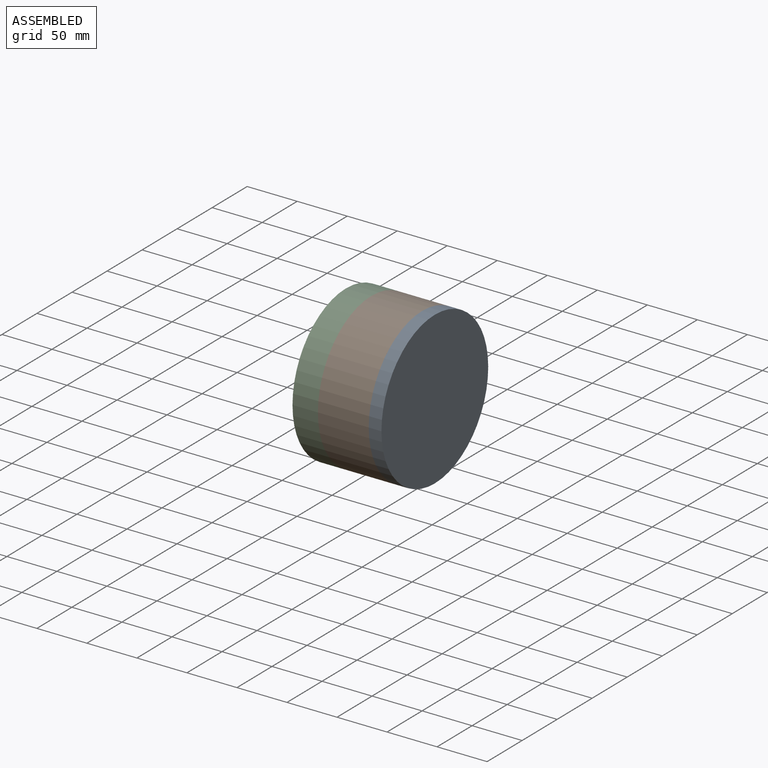
[diagram: assembled view]
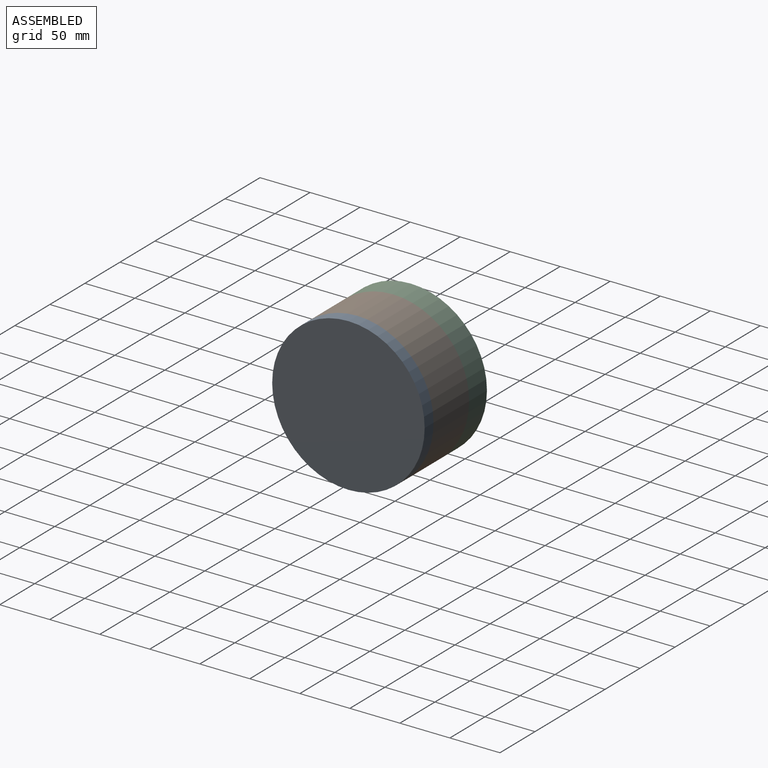
[diagram: assembled view, second angle]
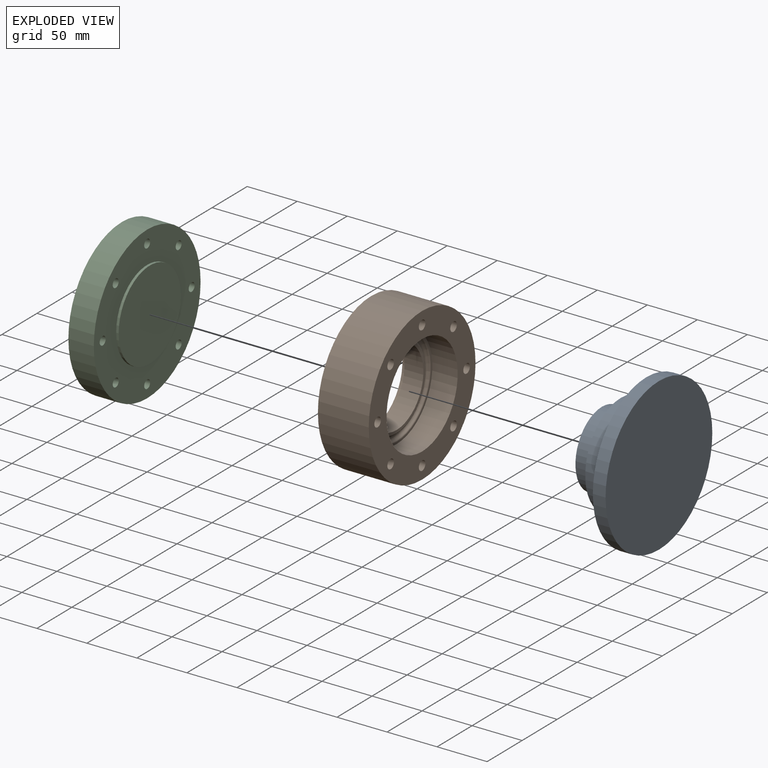
[diagram: exploded view]
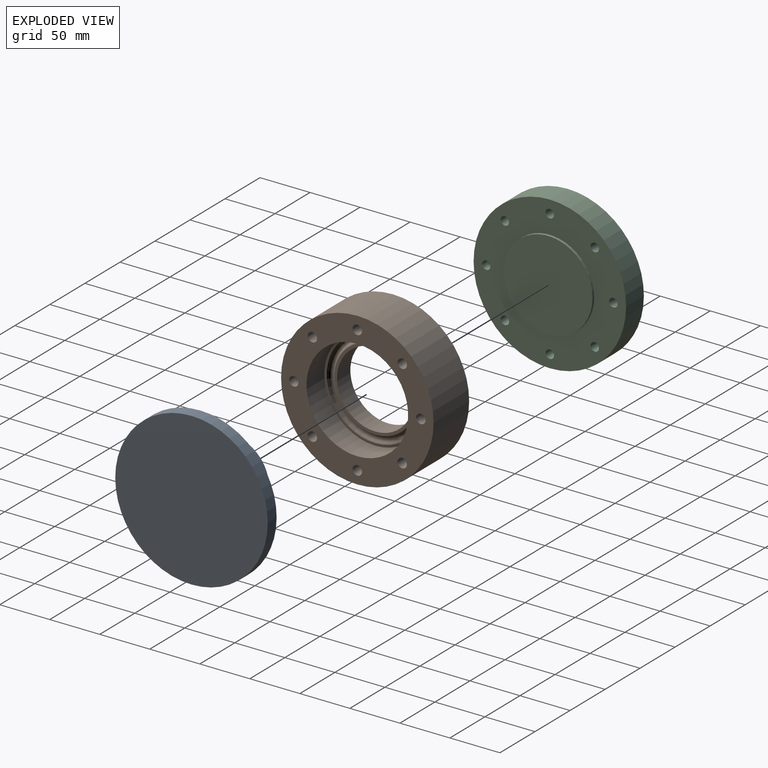
[diagram: exploded view, second angle]
ASSEMBLY  parts=3 mates=3
PART A: 7 faces, bbox 57.2x152.4x152.4 mm
  f0: cylinder r=50.8mm len=101.6mm, axis (-1,0,0), area 8107.3mm2, adj f2,f5
  f1: plane 75.18x75.18mm, normal (-1,0,0), area 4439.6mm2, adj f3
  f2: plane 101.6x101.6mm, normal (-1,0,0), area 3667.8mm2, adj f0,f3
  f3: cylinder r=37.59mm len=75.18mm, axis (-1,0,0), area 4499.6mm2, adj f1,f2
  f4: cylinder r=76.2mm len=152.4mm, axis (1,0,0), area 6080.5mm2, adj f5,f6
  f5: plane 152.4x152.4mm, normal (-1,0,0), area 10134.1mm2, adj f0,f4
  f6: plane 152.4x152.4mm, normal (1,0,0), area 18241.5mm2, adj f4
PART B: 28 faces, bbox 50.8x152.4x152.4 mm
  f0: plane 98.54x98.54mm, normal (-1,0,0), area 1418.4mm2, adj f4,f26
  f1: plane 81.39x81.39mm, normal (1,0,0), area 641.9mm2, adj f6,f13
  f2: cylinder r=76.2mm len=152.4mm, axis (-1,0,0), area 24322mm2, adj f3,f9
  f3: plane 152.4x152.4mm, normal (-1,0,0), area 7345.2mm2, adj f2,f15,f16,f17,f18,f19,f20,f21
  f4: cone r=44.45mm half-angle=30deg, axis (1,0,0), area 2132.3mm2, adj f0,f5
  f5: plane 96.23x96.23mm, normal (-1,0,0), area 2712.9mm2, adj f4,f6
  f6: cylinder r=38.1mm len=76.2mm, axis (-1,0,0), area 4560.4mm2, adj f1,f5
  f7: plane 101.6x101.6mm, normal (1,0,0), area 613mm2, adj f8,f14
  f8: cylinder r=50.8mm len=101.6mm, axis (-1,0,0), area 8107.3mm2, adj f7,f9
  f9: plane 152.4x152.4mm, normal (1,0,0), area 9579.5mm2, adj f2,f8,f15,f16,f17,f18,f19,f20
  f10: plane 90.17x90.17mm, normal (1,0,0), area 178.6mm2, adj f11,f12
  f11: torus R=44.45mm, axis (1,0,0), area 961.7mm2, adj f10,f13
  f12: torus R=45.09mm, axis (1,0,0), area 1043.5mm2, adj f10,f14
  f13: torus R=40.69mm, axis (1,0,0), area 464.1mm2, adj f1,f11
  f14: torus R=48.84mm, axis (-1,0,0), area 538.5mm2, adj f7,f12
  f15: cylinder r=4.7mm len=50.8mm, axis (-1,0,0), area 1499.5mm2, adj f3,f9
  f16: cylinder r=4.7mm len=50.8mm, axis (-1,0,0), area 1499.5mm2, adj f3,f9
  f17: cylinder r=4.7mm len=50.8mm, axis (-1,0,0), area 1499.5mm2, adj f3,f9
  f18: cylinder r=4.7mm len=50.8mm, axis (-1,0,0), area 1499.5mm2, adj f3,f9
  f19: cylinder r=4.7mm len=50.8mm, axis (-1,0,0), area 1499.5mm2, adj f3,f9
  f20: cylinder r=4.7mm len=50.8mm, axis (-1,0,0), area 1499.5mm2, adj f3,f9
  f21: cylinder r=4.7mm len=50.8mm, axis (-1,0,0), area 1499.5mm2, adj f3,f9
  f22: cylinder r=4.7mm len=50.8mm, axis (-1,0,0), area 1499.5mm2, adj f3,f9
  f23: plane 107.24x107.24mm, normal (-1,0,0), area 198.8mm2, adj f24,f25
  f24: torus R=53.02mm, axis (-1,0,0), area 1153.8mm2, adj f23,f26
  f25: torus R=53.62mm, axis (-1,0,0), area 1234.6mm2, adj f23,f27
  f26: torus R=49.27mm, axis (-1,0,0), area 560.2mm2, adj f0,f24
  f27: torus R=57.37mm, axis (1,0,0), area 634mm2, adj f3,f25
PART C: 14 faces, bbox 40.6x152.4x152.4 mm
  f0: cylinder r=76.2mm len=152.4mm, axis (1,0,0), area 12161mm2, adj f1,f5
  f1: plane 152.4x152.4mm, normal (-1,0,0), area 9681.9mm2, adj f0,f2,f6,f7,f8,f9,f10,f11
  f2: revolved ~101.6x101.6mm, area 8594.7mm2, adj f1
  f3: plane 88.8x88.8mm, normal (1,0,0), area 6193mm2, adj f4
  f4: cylinder r=44.4mm len=88.8mm, axis (1,0,0), area 708.6mm2, adj f3,f5
  f5: plane 152.4x152.4mm, normal (1,0,0), area 11596.3mm2, adj f0,f4,f6,f7,f8,f9,f10,f11
  f6: cylinder r=4.24mm len=25.4mm, axis (-1,0,0), area 677mm2, adj f1,f5
  f7: cylinder r=4.24mm len=25.4mm, axis (-1,0,0), area 677mm2, adj f1,f5
  f8: cylinder r=4.24mm len=25.4mm, axis (-1,0,0), area 677mm2, adj f1,f5
  f9: cylinder r=4.24mm len=25.4mm, axis (-1,0,0), area 677mm2, adj f1,f5
  f10: cylinder r=4.24mm len=25.4mm, axis (-1,0,0), area 677mm2, adj f1,f5
  f11: cylinder r=4.24mm len=25.4mm, axis (-1,0,0), area 677mm2, adj f1,f5
  f12: cylinder r=4.24mm len=25.4mm, axis (-1,0,0), area 677mm2, adj f1,f5
  f13: cylinder r=4.24mm len=25.4mm, axis (-1,0,0), area 677mm2, adj f1,f5
PLACE A t=(3.08,10.67,-3.15)mm
PLACE B t=(-3.27,10.67,-3.15)mm fixed
PLACE C rot(axis=(1,0,0),90deg) t=(-3.27,10.67,-3.15)mm
MATE fastened B.f2 <-> C.f0  axis (-1,0,0) through (-3.27,10.67,-3.15)mm
MATE fastened B.f2 <-> A.f4  axis (1,0,0) through (22.13,10.67,-3.15)mm
MATE cylindrical C.f0 <-> B.f2  axis (1,0,0) through (-3.27,10.67,-3.15)mm
